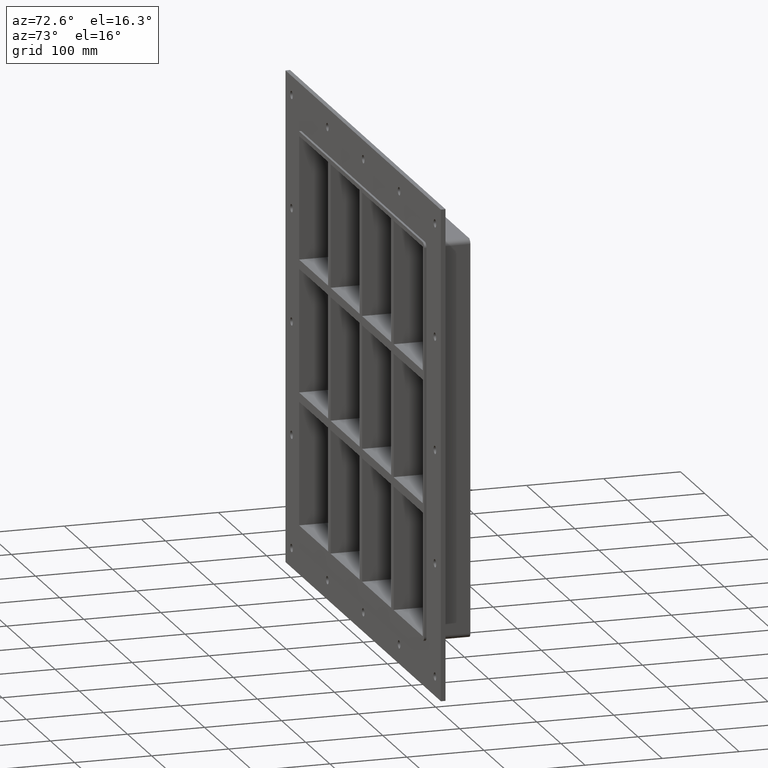
[diagram: clean part render]
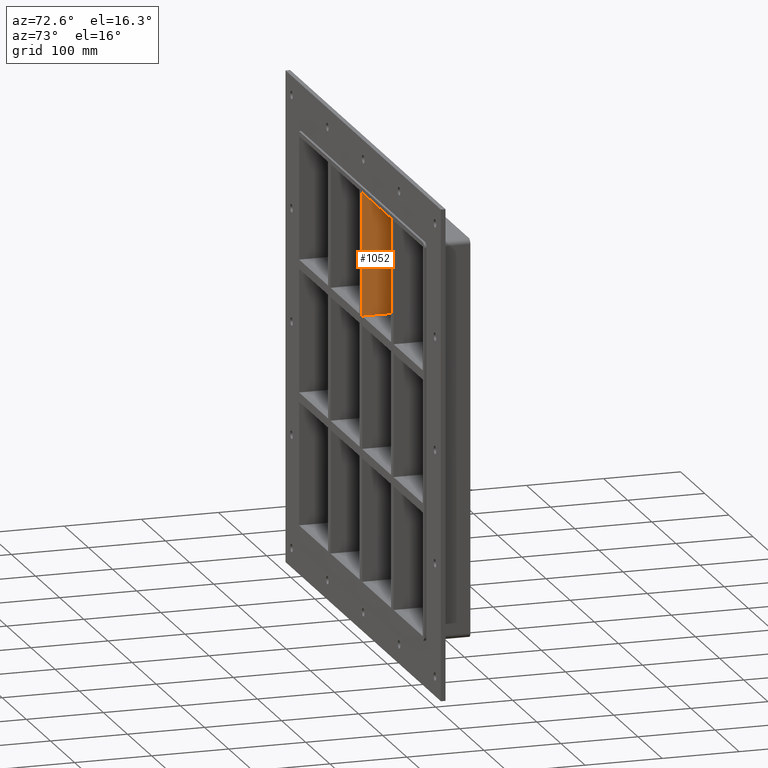
[diagram: same view with one face highlighted and labeled with its STEP entity id]
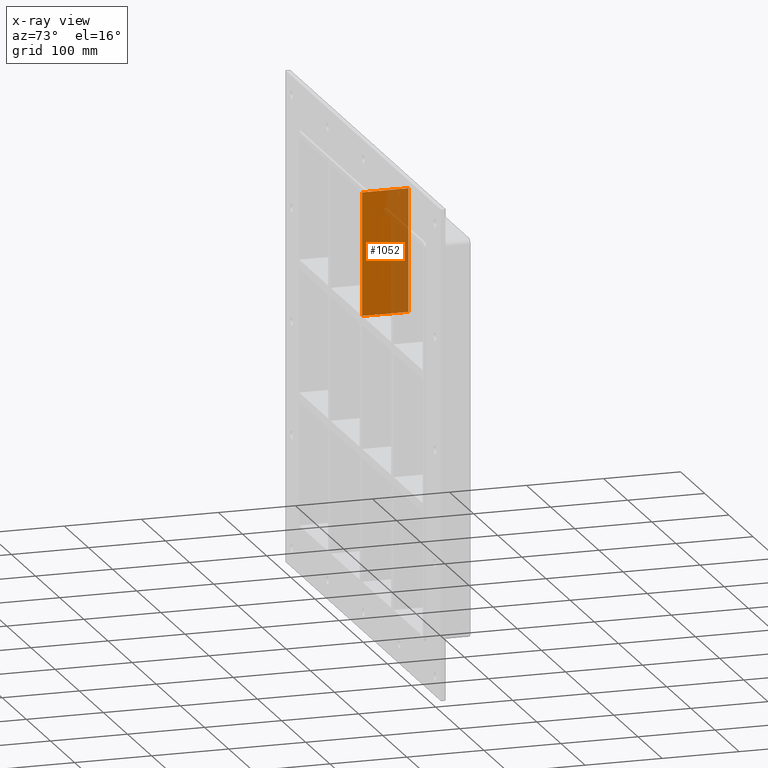
[diagram: x-ray of the same camera — body ghosted, the highlighted face saturated]
A machine part, auxiliary view. The second image highlights one B-rep face of the part: STEP entity #1052.
The next image is the same camera in x-ray: the body ghosted, the highlighted face saturated — about 40% of this face is hidden behind the body in this view.
In plain terms, the highlighted planar face has unit normal (1, 0, 0).
Its self-contained STEP definition (entity closure, byte-faithful):
#811=CARTESIAN_POINT('',(5.000000000007283,57.0,91.750000000000085));
#812=VERTEX_POINT('',#811);
#819=CARTESIAN_POINT('',(5.000000000007283,-3.0,91.750000000000085));
#820=VERTEX_POINT('',#819);
#821=CARTESIAN_POINT('',(5.000000000007283,-3.0,91.750000000000085));
#822=DIRECTION('',(0.0,1.0,0.0));
#823=VECTOR('',#822,60.0);
#824=LINE('',#821,#823);
#825=EDGE_CURVE('',#820,#812,#824,.T.);
#1022=CARTESIAN_POINT('',(5.000000000007283,-3.0,251.24999999999997));
#1023=DIRECTION('',(1.0,0.0,0.0));
#1024=DIRECTION('',(0.0,0.0,-1.0));
#1025=AXIS2_PLACEMENT_3D('',#1022,#1023,#1024);
#1026=PLANE('',#1025);
#1027=ORIENTED_EDGE('',*,*,#825,.T.);
#1028=CARTESIAN_POINT('',(5.000000000007283,57.0,251.24999999999997));
#1029=VERTEX_POINT('',#1028);
#1030=CARTESIAN_POINT('',(5.000000000007283,57.0,251.24999999999997));
#1031=DIRECTION('',(0.0,0.0,-1.0));
#1032=VECTOR('',#1031,159.49999999999989);
#1033=LINE('',#1030,#1032);
#1034=EDGE_CURVE('',#1029,#812,#1033,.T.);
#1035=ORIENTED_EDGE('',*,*,#1034,.F.);
#1036=CARTESIAN_POINT('',(5.000000000007283,-3.0,251.24999999999997));
#1037=VERTEX_POINT('',#1036);
#1038=CARTESIAN_POINT('',(5.000000000007283,-3.0,251.25));
#1039=DIRECTION('',(0.0,1.0,0.0));
#1040=VECTOR('',#1039,60.000000000000007);
#1041=LINE('',#1038,#1040);
#1042=EDGE_CURVE('',#1037,#1029,#1041,.T.);
#1043=ORIENTED_EDGE('',*,*,#1042,.F.);
#1044=CARTESIAN_POINT('',(5.000000000007283,-3.0,251.24999999999997));
#1045=DIRECTION('',(0.0,0.0,-1.0));
#1046=VECTOR('',#1045,159.49999999999989);
#1047=LINE('',#1044,#1046);
#1048=EDGE_CURVE('',#1037,#820,#1047,.T.);
#1049=ORIENTED_EDGE('',*,*,#1048,.T.);
#1050=EDGE_LOOP('',(#1027,#1035,#1043,#1049));
#1051=FACE_OUTER_BOUND('',#1050,.T.);
#1052=ADVANCED_FACE('',(#1051),#1026,.T.);